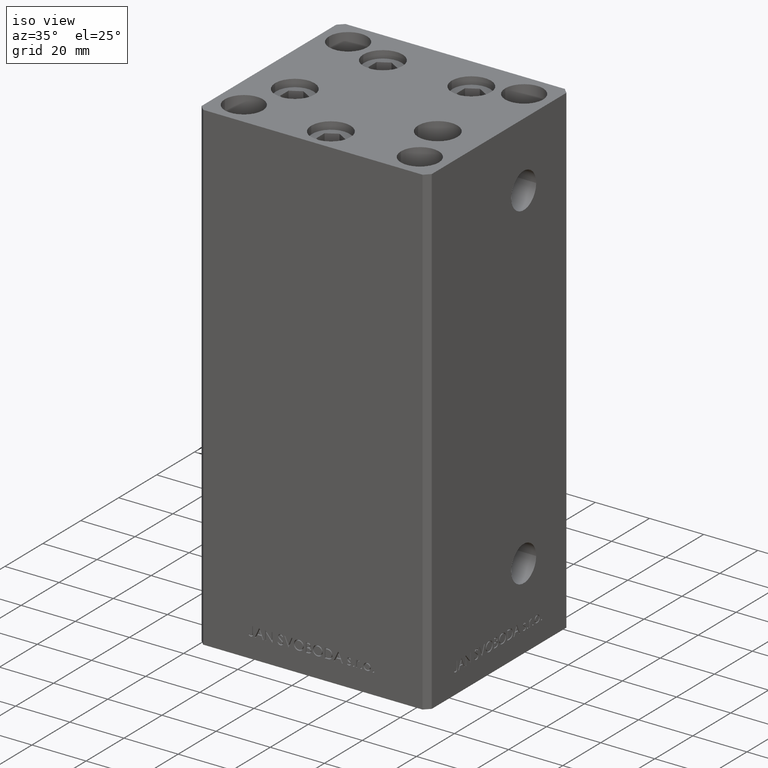
[diagram: clean part render]
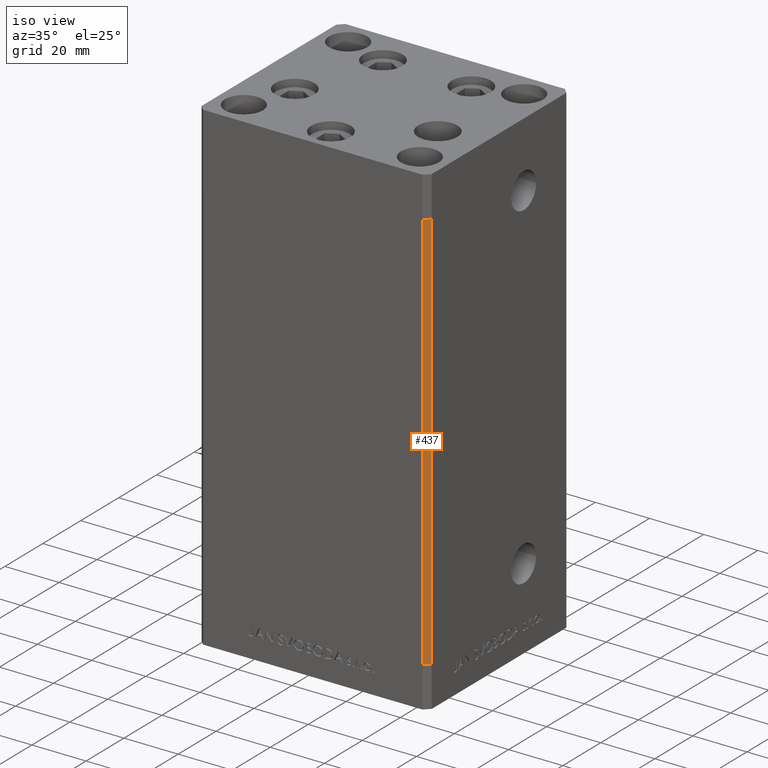
[diagram: same view with one face highlighted and labeled with its STEP entity id]
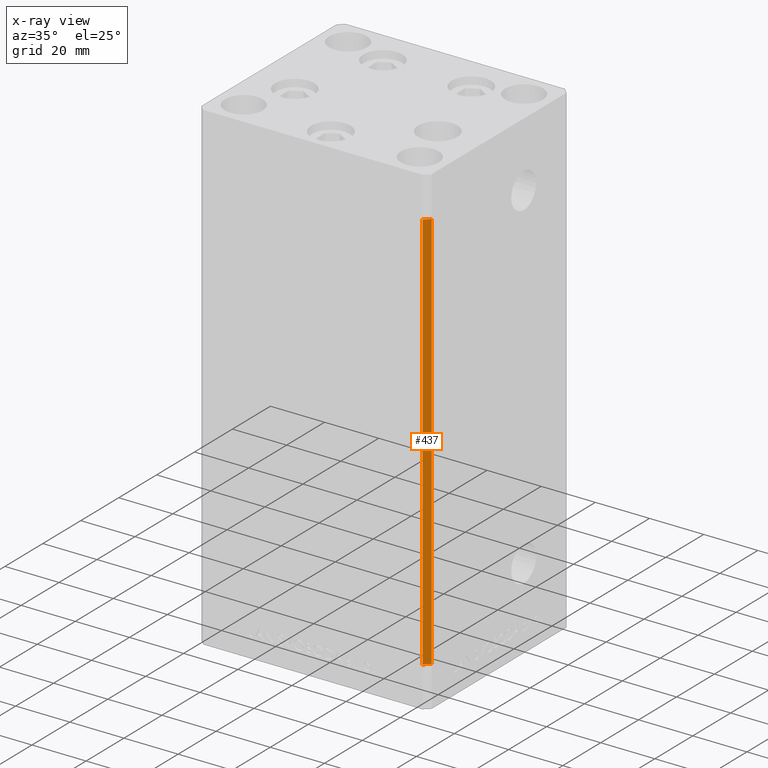
[diagram: x-ray of the same camera — body ghosted, the highlighted face saturated]
A machine part, iso view. The second image highlights one B-rep face of the part: STEP entity #437.
The next image is the same camera in x-ray: the body ghosted, the highlighted face saturated — about 0% of this face is hidden behind the body in this view.
In plain terms, the highlighted planar face has unit normal (0.7071, -0.7071, 0).
Its self-contained STEP definition (entity closure, byte-faithful):
#437 = ADVANCED_FACE ( 'NONE', ( #42907 ), #26737, .T. ) ;
#1078 = CARTESIAN_POINT ( 'NONE',  ( 42.49999999999998579, -35.50000000000000711, 148.5000000000000000 ) ) ;
#5123 = LINE ( 'NONE', #33252, #11542 ) ;
#5574 = CARTESIAN_POINT ( 'NONE',  ( 40.49999999999998579, -37.50000000000000711, 0.000000000000000000 ) ) ;
#6138 = AXIS2_PLACEMENT_3D ( 'NONE', #1078, #41938, #30719 ) ;
#8587 = CARTESIAN_POINT ( 'NONE',  ( 40.49999999999998579, -37.50000000000000711, 148.5000000000000000 ) ) ;
#8732 = VERTEX_POINT ( 'NONE', #10401 ) ;
#8798 = CARTESIAN_POINT ( 'NONE',  ( 42.49999999999998579, -35.50000000000000711, 148.5000000000000000 ) ) ;
#10401 = CARTESIAN_POINT ( 'NONE',  ( 42.49999999999998579, -35.50000000000000711, 0.000000000000000000 ) ) ;
#11542 = VECTOR ( 'NONE', #43952, 1000.000000000000000 ) ;
#11619 = EDGE_CURVE ( 'NONE', #49043, #18967, #43950, .T. ) ;
#11659 = ORIENTED_EDGE ( 'NONE', *, *, #11619, .T. ) ;
#15942 = VECTOR ( 'NONE', #16518, 1000.000000000000000 ) ;
#16518 = DIRECTION ( 'NONE',  ( -0.000000000000000000, -0.000000000000000000, -1.000000000000000000 ) ) ;
#18967 = VERTEX_POINT ( 'NONE', #8587 ) ;
#20269 = LINE ( 'NONE', #38939, #30282 ) ;
#20811 = DIRECTION ( 'NONE',  ( -0.7071067811865474617, -0.7071067811865474617, 0.000000000000000000 ) ) ;
#22651 = CARTESIAN_POINT ( 'NONE',  ( 42.49999999999998579, -35.50000000000000711, 148.5000000000000000 ) ) ;
#23057 = VECTOR ( 'NONE', #20811, 1000.000000000000114 ) ;
#26312 = ORIENTED_EDGE ( 'NONE', *, *, #44492, .F. ) ;
#26737 = PLANE ( 'NONE',  #6138 ) ;
#28805 = EDGE_CURVE ( 'NONE', #18967, #38847, #5123, .T. ) ;
#30282 = VECTOR ( 'NONE', #30983, 1000.000000000000114 ) ;
#30719 = DIRECTION ( 'NONE',  ( 0.7071067811865474617, 0.7071067811865474617, 0.000000000000000000 ) ) ;
#30763 = EDGE_LOOP ( 'NONE', ( #32073, #26312, #11659, #47106 ) ) ;
#30983 = DIRECTION ( 'NONE',  ( -0.7071067811865474617, -0.7071067811865474617, 0.000000000000000000 ) ) ;
#32073 = ORIENTED_EDGE ( 'NONE', *, *, #44664, .F. ) ;
#33252 = CARTESIAN_POINT ( 'NONE',  ( 40.49999999999998579, -37.50000000000000711, 148.5000000000000000 ) ) ;
#35214 = LINE ( 'NONE', #8798, #15942 ) ;
#36995 = CARTESIAN_POINT ( 'NONE',  ( 42.49999999999998579, -35.50000000000000711, 148.5000000000000000 ) ) ;
#38847 = VERTEX_POINT ( 'NONE', #5574 ) ;
#38939 = CARTESIAN_POINT ( 'NONE',  ( 42.49999999999998579, -35.50000000000000711, 0.000000000000000000 ) ) ;
#41938 = DIRECTION ( 'NONE',  ( 0.7071067811865475727, -0.7071067811865475727, 0.000000000000000000 ) ) ;
#42907 = FACE_OUTER_BOUND ( 'NONE', #30763, .T. ) ;
#43950 = LINE ( 'NONE', #36995, #23057 ) ;
#43952 = DIRECTION ( 'NONE',  ( -0.000000000000000000, -0.000000000000000000, -1.000000000000000000 ) ) ;
#44492 = EDGE_CURVE ( 'NONE', #49043, #8732, #35214, .T. ) ;
#44664 = EDGE_CURVE ( 'NONE', #8732, #38847, #20269, .T. ) ;
#47106 = ORIENTED_EDGE ( 'NONE', *, *, #28805, .T. ) ;
#49043 = VERTEX_POINT ( 'NONE', #22651 ) ;